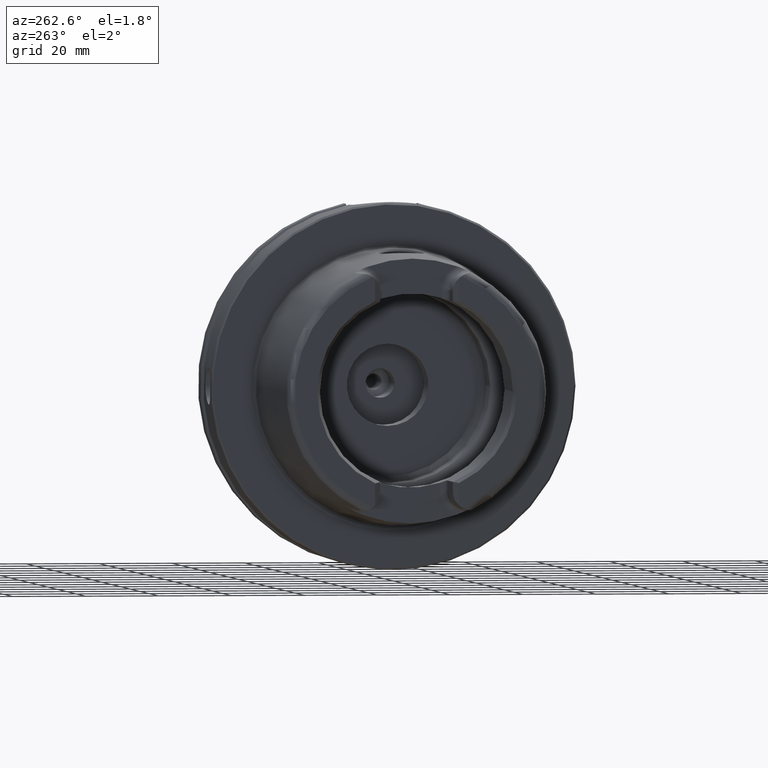
[diagram: clean part render]
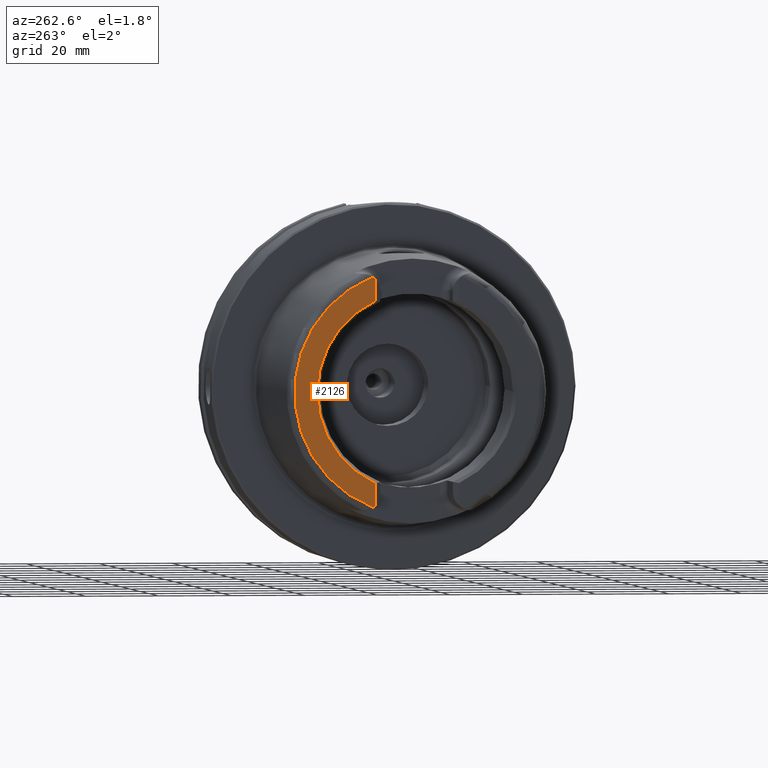
[diagram: same view with one face highlighted and labeled with its STEP entity id]
A machine part, auxiliary view. The second image highlights one B-rep face of the part: STEP entity #2126.
In plain terms, the highlighted planar face has unit normal (-1, 0, 0).
Its self-contained STEP definition (entity closure, byte-faithful):
#131=PLANE('',#2390);
#312=FACE_OUTER_BOUND('',#445,.T.);
#445=EDGE_LOOP('',(#1906,#1907,#1908,#1909,#1910,#1911));
#494=LINE('',#3212,#602);
#506=LINE('',#3323,#614);
#602=VECTOR('',#2579,10.);
#614=VECTOR('',#2639,10.);
#720=CIRCLE('',#2232,4.88);
#731=CIRCLE('',#2257,4.88);
#795=CIRCLE('',#2382,27.3660254037844);
#796=CIRCLE('',#2386,33.6001839277785);
#866=VERTEX_POINT('',#3205);
#869=VERTEX_POINT('',#3210);
#872=VERTEX_POINT('',#3220);
#893=VERTEX_POINT('',#3320);
#894=VERTEX_POINT('',#3322);
#899=VERTEX_POINT('',#3341);
#1094=EDGE_CURVE('',#869,#866,#494,.T.);
#1098=EDGE_CURVE('',#872,#866,#720,.T.);
#1125=EDGE_CURVE('',#893,#894,#506,.T.);
#1132=EDGE_CURVE('',#893,#899,#731,.T.);
#1320=EDGE_CURVE('',#894,#869,#795,.T.);
#1322=EDGE_CURVE('',#872,#899,#796,.T.);
#1906=ORIENTED_EDGE('',*,*,#1094,.F.);
#1907=ORIENTED_EDGE('',*,*,#1320,.F.);
#1908=ORIENTED_EDGE('',*,*,#1125,.F.);
#1909=ORIENTED_EDGE('',*,*,#1132,.T.);
#1910=ORIENTED_EDGE('',*,*,#1322,.F.);
#1911=ORIENTED_EDGE('',*,*,#1098,.T.);
#2126=ADVANCED_FACE('',(#312),#131,.T.);
#2232=AXIS2_PLACEMENT_3D('',#3221,#2587,#2588);
#2257=AXIS2_PLACEMENT_3D('',#3354,#2648,#2649);
#2382=AXIS2_PLACEMENT_3D('',#4537,#2960,#2961);
#2386=AXIS2_PLACEMENT_3D('',#4542,#2969,#2970);
#2390=AXIS2_PLACEMENT_3D('',#4549,#2978,#2979);
#2579=DIRECTION('',(0.,0.,-1.));
#2587=DIRECTION('center_axis',(-1.,0.,0.));
#2588=DIRECTION('ref_axis',(0.,-0.477884921181368,0.878422450821629));
#2639=DIRECTION('',(0.,0.,-1.));
#2648=DIRECTION('center_axis',(-1.,0.,0.));
#2649=DIRECTION('ref_axis',(0.,1.,0.));
#2960=DIRECTION('center_axis',(-1.,0.,0.));
#2961=DIRECTION('ref_axis',(0.,-1.,0.));
#2969=DIRECTION('center_axis',(1.,0.,0.));
#2970=DIRECTION('ref_axis',(0.,0.,-1.));
#2978=DIRECTION('center_axis',(-1.,0.,0.));
#2979=DIRECTION('ref_axis',(0.,0.,1.));
#3205=CARTESIAN_POINT('',(-50.,11.51,-30.8899431813596));
#3210=CARTESIAN_POINT('',(-50.,11.51,-24.8277918148307));
#3212=CARTESIAN_POINT('',(-50.,11.51,-10.));
#3220=CARTESIAN_POINT('',(-50.,12.0743049948301,-31.355757348091));
#3221=CARTESIAN_POINT('Origin',(-50.,14.89,-27.37));
#3320=CARTESIAN_POINT('',(-50.,11.51,30.8899431813596));
#3322=CARTESIAN_POINT('',(-50.,11.51,24.8277918148307));
#3323=CARTESIAN_POINT('',(-50.,11.51,13.685));
#3341=CARTESIAN_POINT('',(-50.,12.0743049948301,31.355757348091));
#3354=CARTESIAN_POINT('Origin',(-50.,14.89,27.37));
#4537=CARTESIAN_POINT('Origin',(-50.,0.,0.));
#4542=CARTESIAN_POINT('Origin',(-50.,0.,0.));
#4549=CARTESIAN_POINT('Origin',(-50.,33.6001839277785,0.));